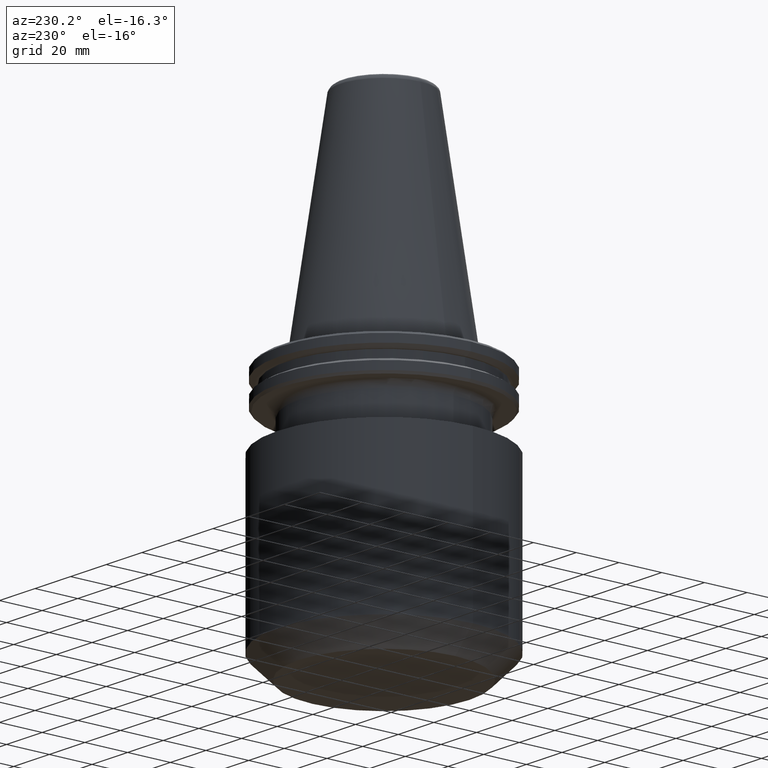
[diagram: clean part render]
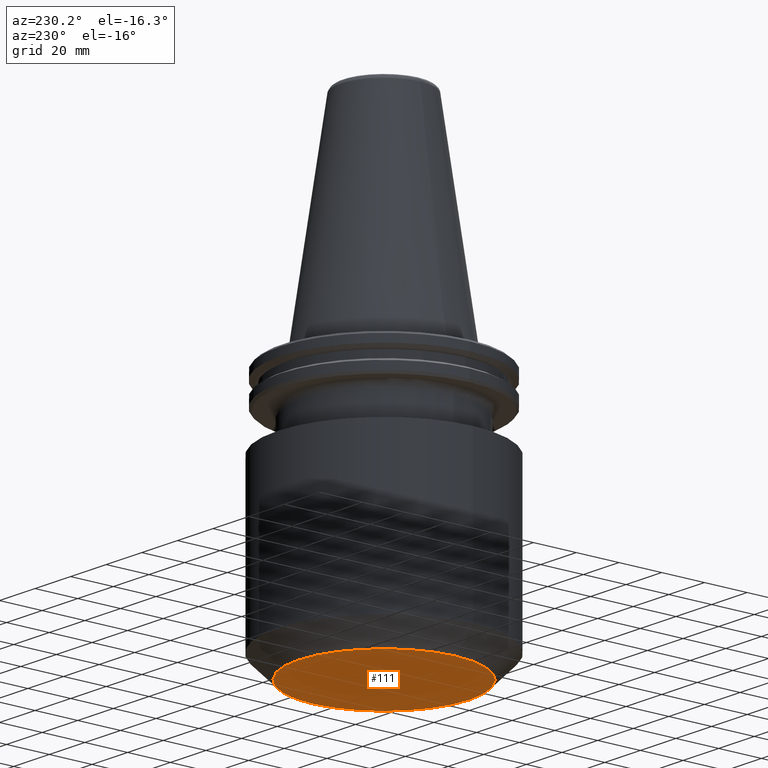
[diagram: same view with one face highlighted and labeled with its STEP entity id]
A machine part, auxiliary view. The second image highlights one B-rep face of the part: STEP entity #111.
In plain terms, the highlighted planar face has unit normal (0, -0, 1).
Its self-contained STEP definition (entity closure, byte-faithful):
#19 = DIRECTION ( 'NONE',  ( -0.0000000000000000000, -0.0000000000000000000, 1.000000000000000000 ) ) ;
#34 = CARTESIAN_POINT ( 'NONE',  ( 40.00000000000000000, 0.0000000000000000000, -120.0000000000000900 ) ) ;
#42 = EDGE_CURVE ( 'NONE', #728, #224, #550, .T. ) ;
#111 = ADVANCED_FACE ( 'NONE', ( #239 ), #1041, .F. ) ;
#160 = DIRECTION ( 'NONE',  ( 0.0000000000000000000, -0.0000000000000000000, 1.000000000000000000 ) ) ;
#208 = ORIENTED_EDGE ( 'NONE', *, *, #358, .F. ) ;
#224 = VERTEX_POINT ( 'NONE', #893 ) ;
#239 = FACE_OUTER_BOUND ( 'NONE', #868, .T. ) ;
#247 = CARTESIAN_POINT ( 'NONE',  ( 0.0000000000000000000, 0.0000000000000000000, -120.0000000000000900 ) ) ;
#260 = AXIS2_PLACEMENT_3D ( 'NONE', #687, #19, #440 ) ;
#342 = AXIS2_PLACEMENT_3D ( 'NONE', #473, #160, #909 ) ;
#358 = EDGE_CURVE ( 'NONE', #224, #728, #703, .T. ) ;
#440 = DIRECTION ( 'NONE',  ( 1.000000000000000000, 0.0000000000000000000, 0.0000000000000000000 ) ) ;
#473 = CARTESIAN_POINT ( 'NONE',  ( 0.0000000000000000000, 0.0000000000000000000, -120.0000000000000700 ) ) ;
#550 = CIRCLE ( 'NONE', #260, 40.00000000000000000 ) ;
#558 = ORIENTED_EDGE ( 'NONE', *, *, #42, .F. ) ;
#568 = DIRECTION ( 'NONE',  ( 1.000000000000000000, 0.0000000000000000000, 0.0000000000000000000 ) ) ;
#622 = AXIS2_PLACEMENT_3D ( 'NONE', #247, #659, #568 ) ;
#659 = DIRECTION ( 'NONE',  ( -0.0000000000000000000, -0.0000000000000000000, 1.000000000000000000 ) ) ;
#687 = CARTESIAN_POINT ( 'NONE',  ( 0.0000000000000000000, 0.0000000000000000000, -120.0000000000000900 ) ) ;
#703 = CIRCLE ( 'NONE', #622, 40.00000000000000000 ) ;
#728 = VERTEX_POINT ( 'NONE', #34 ) ;
#868 = EDGE_LOOP ( 'NONE', ( #558, #208 ) ) ;
#893 = CARTESIAN_POINT ( 'NONE',  ( -40.00000000000000000, 5.510910596163089600E-015, -120.0000000000000900 ) ) ;
#909 = DIRECTION ( 'NONE',  ( 1.000000000000000000, 0.0000000000000000000, 0.0000000000000000000 ) ) ;
#1041 = PLANE ( 'NONE',  #342 ) ;